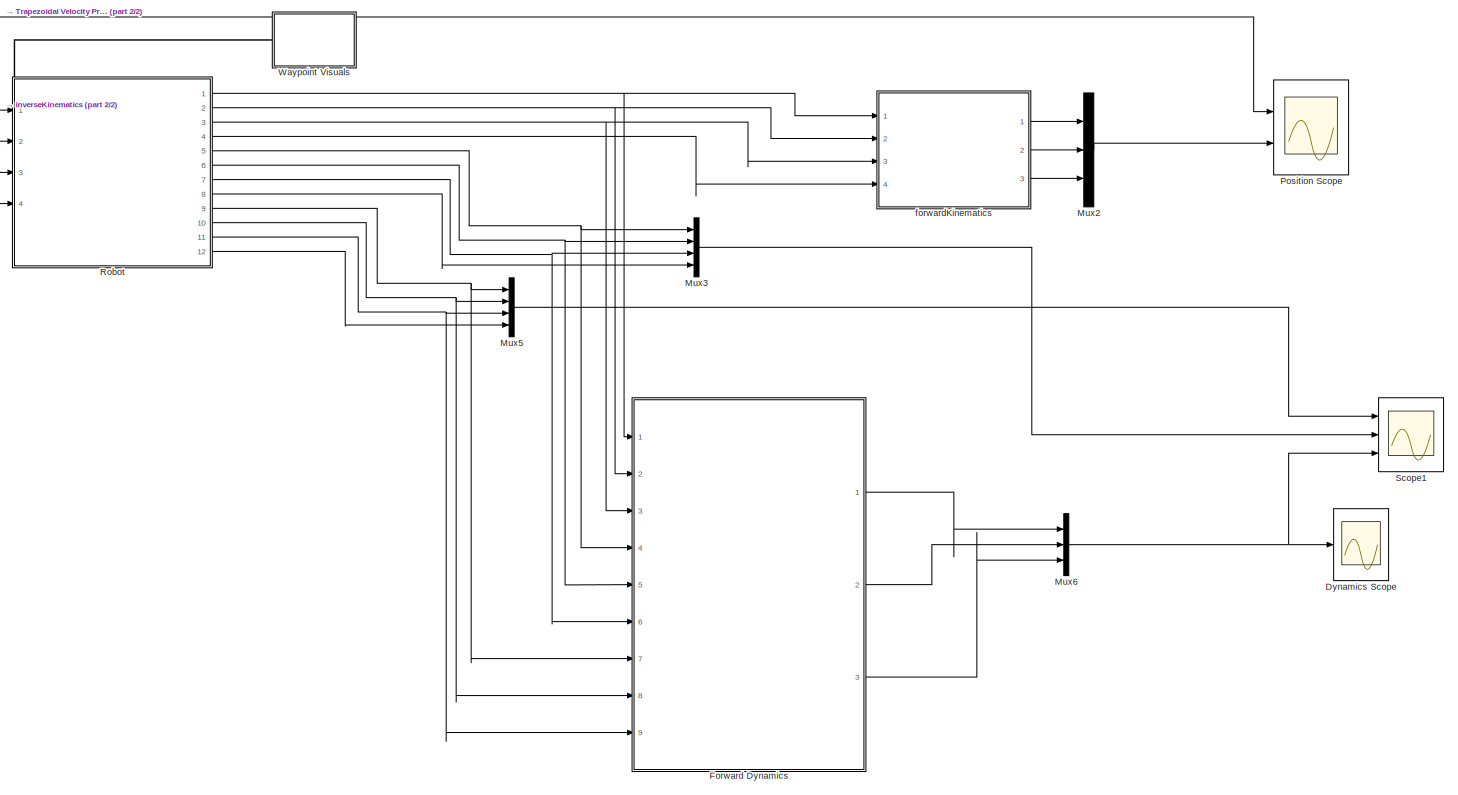
[diagram: root canvas - part 1/2, center side, full height]
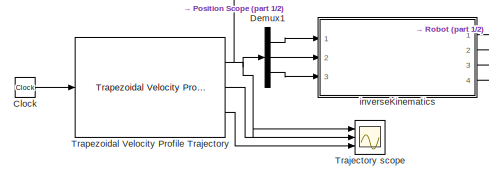
[diagram: root canvas - part 2/2, top left region]
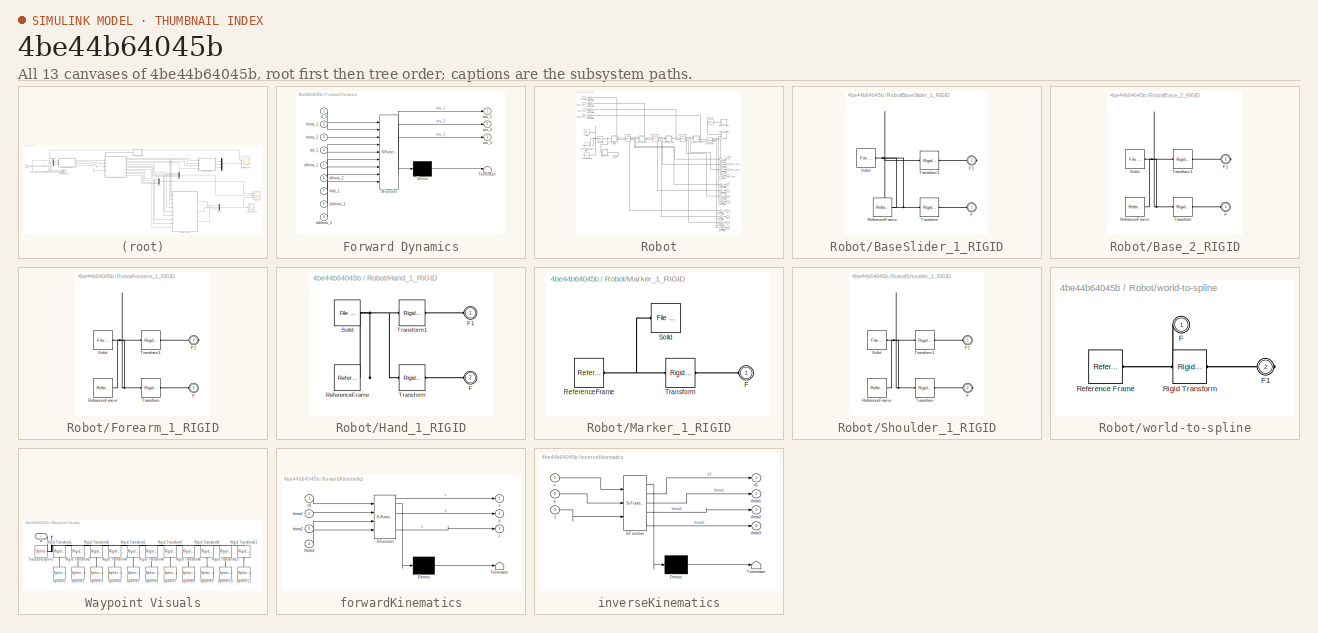
[diagram: thumbnail index - all 13 canvases of the model, root first then tree order]
MODEL slx_4be44b64045b
KIND model
CONFIG AbsTol = auto
CONFIG EnableMultiTasking = off
CONFIG FixedStep = auto
CONFIG MaxStep = auto
CONFIG MinStep = auto
CONFIG RelTol = 1e-3
CONFIG SampleTimeConstraint = Unconstrained
CONFIG SolverName = VariableStepAuto
CONFIG StartTime = 0.0
CONFIG StopTime = 30
WORKSPACE source: external: MATLAB File  (data not in archive)
BLOCK [Clock] Clock
BLOCK [Demux] Demux1
  Outputs = 3
  Ports = [1, 3]
BLOCK [Scope] Dynamics Scope
  Floating = off
  NumInputPorts = 1
  Ports = [1]
  ScopeSpecificationString = Simulink.scopes.TimeScopeBlockCfg('CurrentConfiguration', extmgr.ConfigurationSet(extmgr.Configuration('Core','General UI',true),extmgr.Configuration('Core','Source UI',true),extmgr.Configuration('Sources','WiredSimulink',true,'DataLoggingVariableName','ScopeData1'),extmgr.Configuration('Visuals','Time Domain',true,'SerializedDisplays',{struct('MinYLimReal','-61.11993','MaxYLimReal','96.55399','YL...<+1615ch>
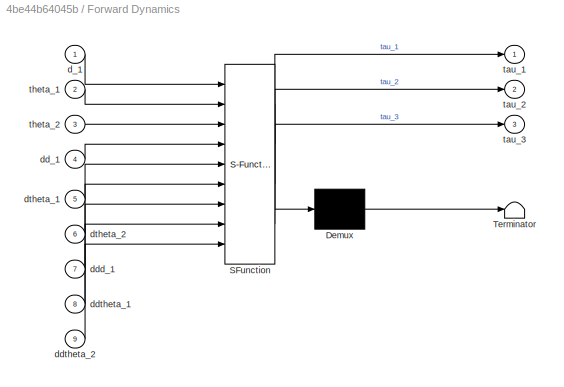
BLOCK [SubSystem] Forward Dynamics
  ErrorFcn = Stateflow.Translate.translate
  PermitHierarchicalResolution = ExplicitOnly
  Ports = [9, 3]
  RequestExecContextInheritance = off
  SFBlockType = MATLAB Function
  TreatAsAtomicUnit = on
BLOCK [Demux] Forward Dynamics/ Demux 
  Outputs = 1
  Ports = [1, 1]
BLOCK [S-Function] Forward Dynamics/ SFunction 
  EnableBusSupport = on
  FunctionName = sf_sfun
  PortCounts = [9 4]
  Ports = [9, 4]
  SFcnIsStateOwnerBlock = off
  SFunctionDeploymentMode = off
  Tag = Stateflow S-Function 1
BLOCK [Terminator] Forward Dynamics/ Terminator 
BLOCK [Inport] Forward Dynamics/d_1
BLOCK [Inport] Forward Dynamics/dd_1
  Port = 4
BLOCK [Inport] Forward Dynamics/ddd_1
  Port = 7
BLOCK [Inport] Forward Dynamics/ddtheta_1
  Port = 8
BLOCK [Inport] Forward Dynamics/ddtheta_2
  Port = 9
BLOCK [Inport] Forward Dynamics/dtheta_1
  Port = 5
BLOCK [Inport] Forward Dynamics/dtheta_2
  Port = 6
BLOCK [Outport] Forward Dynamics/tau_1
BLOCK [Outport] Forward Dynamics/tau_2
  Port = 2
BLOCK [Outport] Forward Dynamics/tau_3
  Port = 3
BLOCK [Inport] Forward Dynamics/theta_1
  Port = 2
BLOCK [Inport] Forward Dynamics/theta_2
  Port = 3
BLOCK [Mux] Mux2
  DisplayOption = bar
  Inputs = 3
  Ports = [3, 1]
BLOCK [Mux] Mux3
  DisplayOption = bar
  Ports = [4, 1]
BLOCK [Mux] Mux5
  DisplayOption = bar
  Ports = [4, 1]
BLOCK [Mux] Mux6
  DisplayOption = bar
  Inputs = 3
  Ports = [3, 1]
BLOCK [Scope] Position Scope
  Floating = off
  NumInputPorts = 2
  Ports = [2]
  ScopeSpecificationString = Simulink.scopes.TimeScopeBlockCfg('CurrentConfiguration', extmgr.ConfigurationSet(extmgr.Configuration('Core','General UI',true),extmgr.Configuration('Core','Source UI',true),extmgr.Configuration('Sources','WiredSimulink',true,'DataLoggingVariableName','ScopeData1'),extmgr.Configuration('Visuals','Time Domain',true,'SerializedDisplays',{struct('MinYLimReal','0.11536','MaxYLimReal','0.765','YLabelR...<+1797ch>
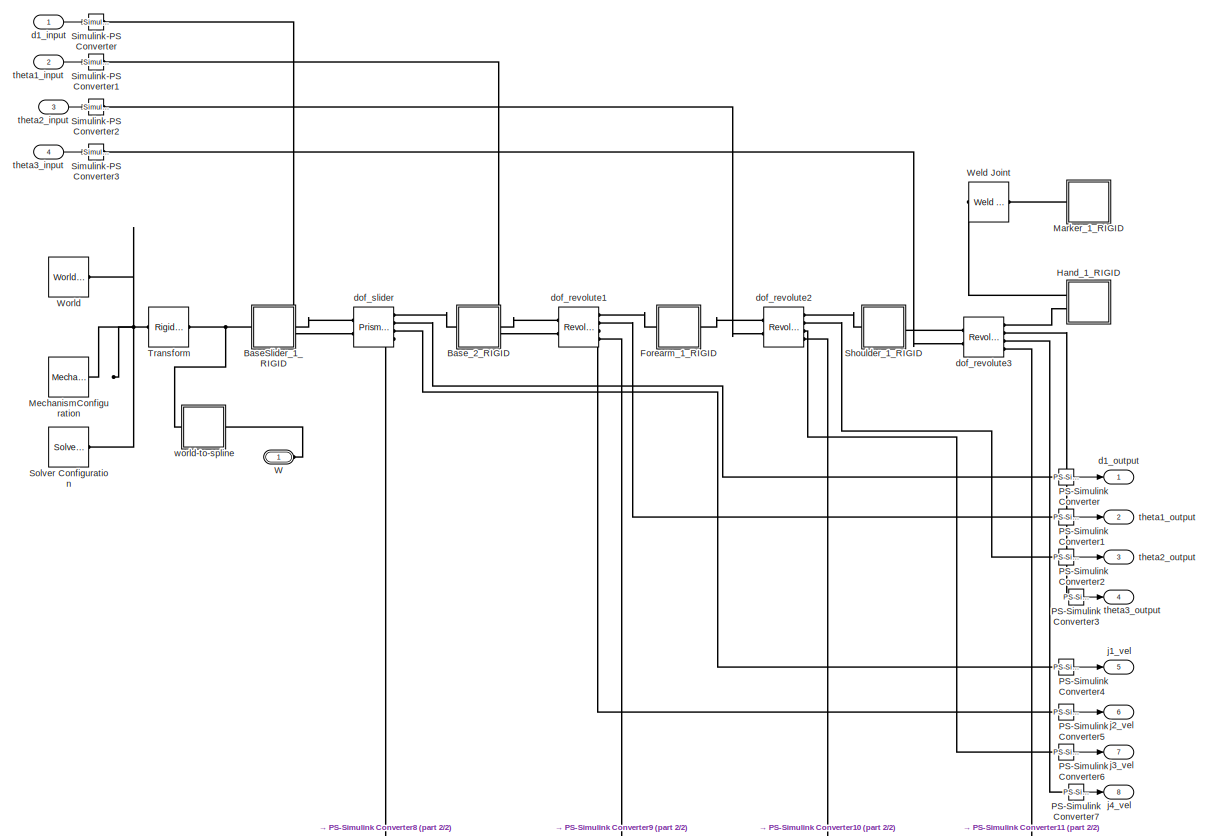
[diagram: Robot - part 1/2, most of the canvas]
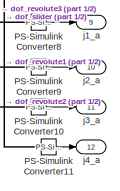
[diagram: Robot - part 2/2, bottom right region]
BLOCK [SubSystem] Robot
  PortSchema = {"entries":[{"content":{"sides":[{"content":{"connectorIds":["In1","In2","In3","In4"]},"type":"ConnectorPlacement.EquallySpacedRectSide","uuid":"c3a63643-6a7a-4711-84d8-adfc528b46a0"},{"content":{"connectorIds":["Out1","Out2","Out3","Out4","Out5","Out6","Out7","Out8","Out9","Out10","Out11","Out12"],"side":"RIGHT"},"type":"ConnectorPlacement.EquallySpacedRectSide","uuid":"b045bc45-fece-4f4f-b844-e3...<+346ch>
  Ports = [4, 12, 0, 0, 0, 1]
  RequestExecContextInheritance = off
BLOCK [SubSystem] Robot/BaseSlider_1_RIGID
  Ports = [0, 0, 0, 0, 0, 1, 1]
  RequestExecContextInheritance = off
BLOCK [PMIOPort] Robot/BaseSlider_1_RIGID/F
  Side = Left
BLOCK [PMIOPort] Robot/BaseSlider_1_RIGID/F1
  Port = 2
  Side = Right
BLOCK [Reference] Robot/BaseSlider_1_RIGID/ReferenceFrame  REF=sm_lib/Frames and
Transforms/Reference
Frame
  Ports = [0, 0, 0, 0, 0, 0, 1]
  SourceBlock = sm_lib/Frames and\nTransforms/Reference\nFrame
  SourceProductBaseCode = MS
  SourceType = Reference\nFrame
BLOCK [Reference] Robot/BaseSlider_1_RIGID/Solid  REF=sm_lib/Body Elements/File Solid
  Ports = [0, 0, 0, 0, 0, 0, 1]
  SourceBlock = sm_lib/Body Elements/File Solid
  SourceProductBaseCode = MS
  SourceType = File Solid
BLOCK [Reference] Robot/BaseSlider_1_RIGID/Transform  REF=sm_lib/Frames and
Transforms/Rigid
Transform
  Ports = [0, 0, 0, 0, 0, 1, 1]
  SourceBlock = sm_lib/Frames and\nTransforms/Rigid\nTransform
  SourceProductBaseCode = MS
  SourceType = Rigid\nTransform
BLOCK [Reference] Robot/BaseSlider_1_RIGID/Transform1  REF=sm_lib/Frames and
Transforms/Rigid
Transform
  Ports = [0, 0, 0, 0, 0, 1, 1]
  SourceBlock = sm_lib/Frames and\nTransforms/Rigid\nTransform
  SourceProductBaseCode = MS
  SourceType = Rigid\nTransform
BLOCK [SubSystem] Robot/Base_2_RIGID
  Ports = [0, 0, 0, 0, 0, 1, 1]
  RequestExecContextInheritance = off
BLOCK [PMIOPort] Robot/Base_2_RIGID/F
  Side = Left
BLOCK [PMIOPort] Robot/Base_2_RIGID/F1
  Port = 2
  Side = Right
BLOCK [Reference] Robot/Base_2_RIGID/ReferenceFrame  REF=sm_lib/Frames and
Transforms/Reference
Frame
  Ports = [0, 0, 0, 0, 0, 0, 1]
  SourceBlock = sm_lib/Frames and\nTransforms/Reference\nFrame
  SourceProductBaseCode = MS
  SourceType = Reference\nFrame
BLOCK [Reference] Robot/Base_2_RIGID/Solid  REF=sm_lib/Body Elements/File Solid
  Ports = [0, 0, 0, 0, 0, 0, 1]
  SourceBlock = sm_lib/Body Elements/File Solid
  SourceProductBaseCode = MS
  SourceType = File Solid
BLOCK [Reference] Robot/Base_2_RIGID/Transform  REF=sm_lib/Frames and
Transforms/Rigid
Transform
  Ports = [0, 0, 0, 0, 0, 1, 1]
  SourceBlock = sm_lib/Frames and\nTransforms/Rigid\nTransform
  SourceProductBaseCode = MS
  SourceType = Rigid\nTransform
BLOCK [Reference] Robot/Base_2_RIGID/Transform1  REF=sm_lib/Frames and
Transforms/Rigid
Transform
  Ports = [0, 0, 0, 0, 0, 1, 1]
  SourceBlock = sm_lib/Frames and\nTransforms/Rigid\nTransform
  SourceProductBaseCode = MS
  SourceType = Rigid\nTransform
BLOCK [SubSystem] Robot/Forearm_1_RIGID
  Ports = [0, 0, 0, 0, 0, 1, 1]
  RequestExecContextInheritance = off
BLOCK [PMIOPort] Robot/Forearm_1_RIGID/F
  Side = Left
BLOCK [PMIOPort] Robot/Forearm_1_RIGID/F1
  Port = 2
  Side = Right
BLOCK [Reference] Robot/Forearm_1_RIGID/ReferenceFrame  REF=sm_lib/Frames and
Transforms/Reference
Frame
  Ports = [0, 0, 0, 0, 0, 0, 1]
  SourceBlock = sm_lib/Frames and\nTransforms/Reference\nFrame
  SourceProductBaseCode = MS
  SourceType = Reference\nFrame
BLOCK [Reference] Robot/Forearm_1_RIGID/Solid  REF=sm_lib/Body Elements/File Solid
  Ports = [0, 0, 0, 0, 0, 0, 1]
  SourceBlock = sm_lib/Body Elements/File Solid
  SourceProductBaseCode = MS
  SourceType = File Solid
BLOCK [Reference] Robot/Forearm_1_RIGID/Transform  REF=sm_lib/Frames and
Transforms/Rigid
Transform
  Ports = [0, 0, 0, 0, 0, 1, 1]
  SourceBlock = sm_lib/Frames and\nTransforms/Rigid\nTransform
  SourceProductBaseCode = MS
  SourceType = Rigid\nTransform
BLOCK [Reference] Robot/Forearm_1_RIGID/Transform1  REF=sm_lib/Frames and
Transforms/Rigid
Transform
  Ports = [0, 0, 0, 0, 0, 1, 1]
  SourceBlock = sm_lib/Frames and\nTransforms/Rigid\nTransform
  SourceProductBaseCode = MS
  SourceType = Rigid\nTransform
BLOCK [SubSystem] Robot/Hand_1_RIGID
  Ports = [0, 0, 0, 0, 0, 2]
  RequestExecContextInheritance = off
BLOCK [PMIOPort] Robot/Hand_1_RIGID/F
  Port = 2
  Side = Left
BLOCK [PMIOPort] Robot/Hand_1_RIGID/F1
  Side = Left
BLOCK [Reference] Robot/Hand_1_RIGID/ReferenceFrame  REF=sm_lib/Frames and
Transforms/Reference
Frame
  Ports = [0, 0, 0, 0, 0, 0, 1]
  SourceBlock = sm_lib/Frames and\nTransforms/Reference\nFrame
  SourceProductBaseCode = MS
  SourceType = Reference\nFrame
BLOCK [Reference] Robot/Hand_1_RIGID/Solid  REF=sm_lib/Body Elements/File Solid
  Ports = [0, 0, 0, 0, 0, 0, 1]
  SourceBlock = sm_lib/Body Elements/File Solid
  SourceProductBaseCode = MS
  SourceType = File Solid
BLOCK [Reference] Robot/Hand_1_RIGID/Transform  REF=sm_lib/Frames and
Transforms/Rigid
Transform
  Ports = [0, 0, 0, 0, 0, 1, 1]
  SourceBlock = sm_lib/Frames and\nTransforms/Rigid\nTransform
  SourceProductBaseCode = MS
  SourceType = Rigid\nTransform
BLOCK [Reference] Robot/Hand_1_RIGID/Transform1  REF=sm_lib/Frames and
Transforms/Rigid
Transform
  Ports = [0, 0, 0, 0, 0, 1, 1]
  SourceBlock = sm_lib/Frames and\nTransforms/Rigid\nTransform
  SourceProductBaseCode = MS
  SourceType = Rigid\nTransform
BLOCK [SubSystem] Robot/Marker_1_RIGID
  Ports = [0, 0, 0, 0, 0, 1]
  RequestExecContextInheritance = off
BLOCK [PMIOPort] Robot/Marker_1_RIGID/F
  Side = Left
BLOCK [Reference] Robot/Marker_1_RIGID/ReferenceFrame  REF=sm_lib/Frames and
Transforms/Reference
Frame
  Ports = [0, 0, 0, 0, 0, 0, 1]
  SourceBlock = sm_lib/Frames and\nTransforms/Reference\nFrame
  SourceProductBaseCode = MS
  SourceType = Reference\nFrame
BLOCK [Reference] Robot/Marker_1_RIGID/Solid  REF=sm_lib/Body Elements/File Solid
  Ports = [0, 0, 0, 0, 0, 1]
  SourceBlock = sm_lib/Body Elements/File Solid
  SourceProductBaseCode = MS
  SourceType = File Solid
BLOCK [Reference] Robot/Marker_1_RIGID/Transform  REF=sm_lib/Frames and
Transforms/Rigid
Transform
  Ports = [0, 0, 0, 0, 0, 1, 1]
  SourceBlock = sm_lib/Frames and\nTransforms/Rigid\nTransform
  SourceProductBaseCode = MS
  SourceType = Rigid\nTransform
BLOCK [Reference] Robot/MechanismConfiguration  REF=sm_lib/Utilities/Mechanism
Configuration
  Ports = [0, 0, 0, 0, 0, 0, 1]
  SourceBlock = sm_lib/Utilities/Mechanism\nConfiguration
  SourceProductBaseCode = MS
  SourceType = Mechanism\nConfiguration
BLOCK [Reference] Robot/PS-Simulink Converter  REF=nesl_utility/PS-Simulink
Converter
  Ports = [0, 1, 0, 0, 0, 1]
  SourceBlock = nesl_utility/PS-Simulink\nConverter
  SourceProductBaseCode = PW,SS
  SourceType = PS-Simulink\nConverter
BLOCK [Reference] Robot/PS-Simulink Converter1  REF=nesl_utility/PS-Simulink
Converter
  Ports = [0, 1, 0, 0, 0, 1]
  SourceBlock = nesl_utility/PS-Simulink\nConverter
  SourceProductBaseCode = PW,SS
  SourceType = PS-Simulink\nConverter
BLOCK [Reference] Robot/PS-Simulink Converter10  REF=nesl_utility/PS-Simulink
Converter
  Ports = [0, 1, 0, 0, 0, 1]
  SourceBlock = nesl_utility/PS-Simulink\nConverter
  SourceProductBaseCode = PW,SS
  SourceType = PS-Simulink\nConverter
BLOCK [Reference] Robot/PS-Simulink Converter11  REF=nesl_utility/PS-Simulink
Converter
  Ports = [0, 1, 0, 0, 0, 1]
  SourceBlock = nesl_utility/PS-Simulink\nConverter
  SourceProductBaseCode = PW,SS
  SourceType = PS-Simulink\nConverter
BLOCK [Reference] Robot/PS-Simulink Converter2  REF=nesl_utility/PS-Simulink
Converter
  Ports = [0, 1, 0, 0, 0, 1]
  SourceBlock = nesl_utility/PS-Simulink\nConverter
  SourceProductBaseCode = PW,SS
  SourceType = PS-Simulink\nConverter
BLOCK [Reference] Robot/PS-Simulink Converter3  REF=nesl_utility/PS-Simulink
Converter
  Ports = [0, 1, 0, 0, 0, 1]
  SourceBlock = nesl_utility/PS-Simulink\nConverter
  SourceProductBaseCode = PW,SS
  SourceType = PS-Simulink\nConverter
BLOCK [Reference] Robot/PS-Simulink Converter4  REF=nesl_utility/PS-Simulink
Converter
  Ports = [0, 1, 0, 0, 0, 1]
  SourceBlock = nesl_utility/PS-Simulink\nConverter
  SourceProductBaseCode = PW,SS
  SourceType = PS-Simulink\nConverter
BLOCK [Reference] Robot/PS-Simulink Converter5  REF=nesl_utility/PS-Simulink
Converter
  Ports = [0, 1, 0, 0, 0, 1]
  SourceBlock = nesl_utility/PS-Simulink\nConverter
  SourceProductBaseCode = PW,SS
  SourceType = PS-Simulink\nConverter
BLOCK [Reference] Robot/PS-Simulink Converter6  REF=nesl_utility/PS-Simulink
Converter
  Ports = [0, 1, 0, 0, 0, 1]
  SourceBlock = nesl_utility/PS-Simulink\nConverter
  SourceProductBaseCode = PW,SS
  SourceType = PS-Simulink\nConverter
BLOCK [Reference] Robot/PS-Simulink Converter7  REF=nesl_utility/PS-Simulink
Converter
  Ports = [0, 1, 0, 0, 0, 1]
  SourceBlock = nesl_utility/PS-Simulink\nConverter
  SourceProductBaseCode = PW,SS
  SourceType = PS-Simulink\nConverter
BLOCK [Reference] Robot/PS-Simulink Converter8  REF=nesl_utility/PS-Simulink
Converter
  Ports = [0, 1, 0, 0, 0, 1]
  SourceBlock = nesl_utility/PS-Simulink\nConverter
  SourceProductBaseCode = PW,SS
  SourceType = PS-Simulink\nConverter
BLOCK [Reference] Robot/PS-Simulink Converter9  REF=nesl_utility/PS-Simulink
Converter
  Ports = [0, 1, 0, 0, 0, 1]
  SourceBlock = nesl_utility/PS-Simulink\nConverter
  SourceProductBaseCode = PW,SS
  SourceType = PS-Simulink\nConverter
BLOCK [SubSystem] Robot/Shoulder_1_RIGID
  Ports = [0, 0, 0, 0, 0, 1, 1]
  RequestExecContextInheritance = off
BLOCK [PMIOPort] Robot/Shoulder_1_RIGID/F
  Port = 2
  Side = Right
BLOCK [PMIOPort] Robot/Shoulder_1_RIGID/F1
  Side = Left
BLOCK [Reference] Robot/Shoulder_1_RIGID/ReferenceFrame  REF=sm_lib/Frames and
Transforms/Reference
Frame
  Ports = [0, 0, 0, 0, 0, 0, 1]
  SourceBlock = sm_lib/Frames and\nTransforms/Reference\nFrame
  SourceProductBaseCode = MS
  SourceType = Reference\nFrame
BLOCK [Reference] Robot/Shoulder_1_RIGID/Solid  REF=sm_lib/Body Elements/File Solid
  Ports = [0, 0, 0, 0, 0, 0, 1]
  SourceBlock = sm_lib/Body Elements/File Solid
  SourceProductBaseCode = MS
  SourceType = File Solid
BLOCK [Reference] Robot/Shoulder_1_RIGID/Transform  REF=sm_lib/Frames and
Transforms/Rigid
Transform
  Ports = [0, 0, 0, 0, 0, 1, 1]
  SourceBlock = sm_lib/Frames and\nTransforms/Rigid\nTransform
  SourceProductBaseCode = MS
  SourceType = Rigid\nTransform
BLOCK [Reference] Robot/Shoulder_1_RIGID/Transform1  REF=sm_lib/Frames and
Transforms/Rigid
Transform
  Ports = [0, 0, 0, 0, 0, 1, 1]
  SourceBlock = sm_lib/Frames and\nTransforms/Rigid\nTransform
  SourceProductBaseCode = MS
  SourceType = Rigid\nTransform
BLOCK [Reference] Robot/Simulink-PS Converter  REF=nesl_utility/Simulink-PS
Converter
  Ports = [1, 0, 0, 0, 0, 0, 1]
  SourceBlock = nesl_utility/Simulink-PS\nConverter
  SourceProductBaseCode = PW,SS
  SourceType = Simulink-PS\nConverter
BLOCK [Reference] Robot/Simulink-PS Converter1  REF=nesl_utility/Simulink-PS
Converter
  Ports = [1, 0, 0, 0, 0, 0, 1]
  SourceBlock = nesl_utility/Simulink-PS\nConverter
  SourceProductBaseCode = PW,SS
  SourceType = Simulink-PS\nConverter
BLOCK [Reference] Robot/Simulink-PS Converter2  REF=nesl_utility/Simulink-PS
Converter
  Ports = [1, 0, 0, 0, 0, 0, 1]
  SourceBlock = nesl_utility/Simulink-PS\nConverter
  SourceProductBaseCode = PW,SS
  SourceType = Simulink-PS\nConverter
BLOCK [Reference] Robot/Simulink-PS Converter3  REF=nesl_utility/Simulink-PS
Converter
  Ports = [1, 0, 0, 0, 0, 0, 1]
  SourceBlock = nesl_utility/Simulink-PS\nConverter
  SourceProductBaseCode = PW,SS
  SourceType = Simulink-PS\nConverter
BLOCK [Reference] Robot/Solver Configuration  REF=nesl_utility/Solver
Configuration
  Ports = [0, 0, 0, 0, 0, 0, 1]
  SourceBlock = nesl_utility/Solver\nConfiguration
  SourceProductBaseCode = PW,SS
  SourceType = Solver\nConfiguration
BLOCK [Reference] Robot/Transform  REF=sm_lib/Frames and
Transforms/Rigid
Transform
  Ports = [0, 0, 0, 0, 0, 1, 1]
  SourceBlock = sm_lib/Frames and\nTransforms/Rigid\nTransform
  SourceProductBaseCode = MS
  SourceType = Rigid\nTransform
BLOCK [PMIOPort] Robot/W
  Side = Left
BLOCK [Reference] Robot/Weld Joint  REF=sm_lib/Joints/Weld Joint
  Ports = [0, 0, 0, 0, 0, 1, 1]
  SourceBlock = sm_lib/Joints/Weld Joint
  SourceProductBaseCode = MS
  SourceType = Weld Joint
BLOCK [Reference] Robot/World  REF=sm_lib/Frames and
Transforms/World Frame
  Ports = [0, 0, 0, 0, 0, 0, 1]
  SourceBlock = sm_lib/Frames and\nTransforms/World Frame
  SourceProductBaseCode = MS
  SourceType = World Frame
BLOCK [Inport] Robot/d1_input
BLOCK [Outport] Robot/d1_output
BLOCK [Reference] Robot/dof_revolute1  REF=sm_lib/Joints/Revolute Joint
  Ports = [0, 0, 0, 0, 0, 2, 4]
  SourceBlock = sm_lib/Joints/Revolute Joint
  SourceProductBaseCode = MS
  SourceType = Revolute Joint
BLOCK [Reference] Robot/dof_revolute2  REF=sm_lib/Joints/Revolute Joint
  Ports = [0, 0, 0, 0, 0, 2, 4]
  SourceBlock = sm_lib/Joints/Revolute Joint
  SourceProductBaseCode = MS
  SourceType = Revolute Joint
BLOCK [Reference] Robot/dof_revolute3  REF=sm_lib/Joints/Revolute Joint
  Ports = [0, 0, 0, 0, 0, 2, 4]
  SourceBlock = sm_lib/Joints/Revolute Joint
  SourceProductBaseCode = MS
  SourceType = Revolute Joint
BLOCK [Reference] Robot/dof_slider  REF=sm_lib/Joints/Prismatic
Joint
  Ports = [0, 0, 0, 0, 0, 2, 4]
  SourceBlock = sm_lib/Joints/Prismatic\nJoint
  SourceProductBaseCode = MS
  SourceType = Prismatic\nJoint
BLOCK [Outport] Robot/j1_a
  Port = 9
BLOCK [Outport] Robot/j1_vel
  Port = 5
BLOCK [Outport] Robot/j2_a
  Port = 10
BLOCK [Outport] Robot/j2_vel
  Port = 6
BLOCK [Outport] Robot/j3_a
  Port = 11
BLOCK [Outport] Robot/j3_vel
  Port = 7
BLOCK [Outport] Robot/j4_a
  Port = 12
BLOCK [Outport] Robot/j4_vel
  Port = 8
BLOCK [Inport] Robot/theta1_input
  Port = 2
BLOCK [Outport] Robot/theta1_output
  Port = 2
BLOCK [Inport] Robot/theta2_input
  Port = 3
BLOCK [Outport] Robot/theta2_output
  Port = 3
BLOCK [Inport] Robot/theta3_input
  Port = 4
BLOCK [Outport] Robot/theta3_output
  Port = 4
BLOCK [SubSystem] Robot/world-to-spline
  Ports = [0, 0, 0, 0, 0, 1, 1]
  RequestExecContextInheritance = off
BLOCK [PMIOPort] Robot/world-to-spline/F
  Side = Left
BLOCK [PMIOPort] Robot/world-to-spline/F1
  Port = 2
  Side = Right
BLOCK [Reference] Robot/world-to-spline/Reference Frame  REF=sm_lib/Frames and
Transforms/Reference
Frame
  Ports = [0, 0, 0, 0, 0, 0, 1]
  SourceBlock = sm_lib/Frames and\nTransforms/Reference\nFrame
  SourceProductBaseCode = MS
  SourceType = Reference\nFrame
BLOCK [Reference] Robot/world-to-spline/Rigid Transform  REF=sm_lib/Frames and
Transforms/Rigid
Transform
  Ports = [0, 0, 0, 0, 0, 1, 1]
  SourceBlock = sm_lib/Frames and\nTransforms/Rigid\nTransform
  SourceProductBaseCode = MS
  SourceType = Rigid\nTransform
BLOCK [Scope] Scope1
  Floating = off
  NumInputPorts = 3
  Ports = [3]
  ScopeSpecificationString = Simulink.scopes.TimeScopeBlockCfg('CurrentConfiguration', extmgr.ConfigurationSet(extmgr.Configuration('Core','General UI',true),extmgr.Configuration('Core','Source UI',true),extmgr.Configuration('Sources','WiredSimulink',true,'DataLoggingVariableName','ScopeData1'),extmgr.Configuration('Visuals','Time Domain',true,'SerializedDisplays',{struct('MinYLimReal','-2.39084','MaxYLimReal','2.74284','YLab...<+3793ch>
BLOCK [Scope] Trajectory scope
  Floating = off
  NumInputPorts = 3
  Ports = [3]
  ScopeSpecificationString = Simulink.scopes.TimeScopeBlockCfg('CurrentConfiguration', extmgr.ConfigurationSet(extmgr.Configuration('Core','General UI',true),extmgr.Configuration('Core','Source UI',true),extmgr.Configuration('Sources','WiredSimulink',true,'DataLoggingVariableName','ScopeData1'),extmgr.Configuration('Visuals','Time Domain',true,'SerializedDisplays',{struct('MinYLimReal','0.105','MaxYLimReal','0.855','YLabelRea...<+2979ch>
BLOCK [Reference] Trapezoidal Velocity Profile Trajectory  REF=robotcorelib/Trapezoidal Velocity Profile Trajectory
  Ports = [1, 3]
  SourceBlock = robotcorelib/Trapezoidal Velocity Profile Trajectory
  SourceProductBaseCode = NV,RO,RR,UV
  SourceType = robotics.slcore.internal.block.TrapVelTrajSys
BLOCK [SubSystem] Waypoint Visuals
  CopyFcn = set_param(gcb,'LinkStatus','breakWithoutHierarchy');
  Ports = [0, 0, 0, 0, 0, 1]
  RequestExecContextInheritance = off
BLOCK [Reference] Waypoint Visuals/Rigid Transform1  REF=sm_lib/Frames and
Transforms/Rigid
Transform
  NameLocation = right
  Ports = [0, 0, 0, 0, 0, 1, 1]
  SourceBlock = sm_lib/Frames and\nTransforms/Rigid\nTransform
  SourceProductBaseCode = MS
  SourceType = Rigid\nTransform
BLOCK [Reference] Waypoint Visuals/Rigid Transform10  REF=sm_lib/Frames and
Transforms/Rigid
Transform
  NameLocation = right
  Ports = [0, 0, 0, 0, 0, 1, 1]
  SourceBlock = sm_lib/Frames and\nTransforms/Rigid\nTransform
  SourceProductBaseCode = MS
  SourceType = Rigid\nTransform
BLOCK [Reference] Waypoint Visuals/Rigid Transform11  REF=sm_lib/Frames and
Transforms/Rigid
Transform
  NameLocation = right
  Ports = [0, 0, 0, 0, 0, 1, 1]
  SourceBlock = sm_lib/Frames and\nTransforms/Rigid\nTransform
  SourceProductBaseCode = MS
  SourceType = Rigid\nTransform
BLOCK [Reference] Waypoint Visuals/Rigid Transform2  REF=sm_lib/Frames and
Transforms/Rigid
Transform
  NameLocation = right
  Ports = [0, 0, 0, 0, 0, 1, 1]
  SourceBlock = sm_lib/Frames and\nTransforms/Rigid\nTransform
  SourceProductBaseCode = MS
  SourceType = Rigid\nTransform
BLOCK [Reference] Waypoint Visuals/Rigid Transform3  REF=sm_lib/Frames and
Transforms/Rigid
Transform
  NameLocation = right
  Ports = [0, 0, 0, 0, 0, 1, 1]
  SourceBlock = sm_lib/Frames and\nTransforms/Rigid\nTransform
  SourceProductBaseCode = MS
  SourceType = Rigid\nTransform
BLOCK [Reference] Waypoint Visuals/Rigid Transform4  REF=sm_lib/Frames and
Transforms/Rigid
Transform
  NameLocation = right
  Ports = [0, 0, 0, 0, 0, 1, 1]
  SourceBlock = sm_lib/Frames and\nTransforms/Rigid\nTransform
  SourceProductBaseCode = MS
  SourceType = Rigid\nTransform
BLOCK [Reference] Waypoint Visuals/Rigid Transform5  REF=sm_lib/Frames and
Transforms/Rigid
Transform
  NameLocation = right
  Ports = [0, 0, 0, 0, 0, 1, 1]
  SourceBlock = sm_lib/Frames and\nTransforms/Rigid\nTransform
  SourceProductBaseCode = MS
  SourceType = Rigid\nTransform
BLOCK [Reference] Waypoint Visuals/Rigid Transform6  REF=sm_lib/Frames and
Transforms/Rigid
Transform
  NameLocation = right
  Ports = [0, 0, 0, 0, 0, 1, 1]
  SourceBlock = sm_lib/Frames and\nTransforms/Rigid\nTransform
  SourceProductBaseCode = MS
  SourceType = Rigid\nTransform
BLOCK [Reference] Waypoint Visuals/Rigid Transform7  REF=sm_lib/Frames and
Transforms/Rigid
Transform
  NameLocation = right
  Ports = [0, 0, 0, 0, 0, 1, 1]
  SourceBlock = sm_lib/Frames and\nTransforms/Rigid\nTransform
  SourceProductBaseCode = MS
  SourceType = Rigid\nTransform
BLOCK [Reference] Waypoint Visuals/Rigid Transform8  REF=sm_lib/Frames and
Transforms/Rigid
Transform
  NameLocation = right
  Ports = [0, 0, 0, 0, 0, 1, 1]
  SourceBlock = sm_lib/Frames and\nTransforms/Rigid\nTransform
  SourceProductBaseCode = MS
  SourceType = Rigid\nTransform
BLOCK [Reference] Waypoint Visuals/Rigid Transform9  REF=sm_lib/Frames and
Transforms/Rigid
Transform
  NameLocation = right
  Ports = [0, 0, 0, 0, 0, 1, 1]
  SourceBlock = sm_lib/Frames and\nTransforms/Rigid\nTransform
  SourceProductBaseCode = MS
  SourceType = Rigid\nTransform
BLOCK [Reference] Waypoint Visuals/Sphere1  REF=sm_lib/Body Elements/Spherical Solid
  Ports = [0, 0, 0, 0, 0, 0, 1]
  SourceBlock = sm_lib/Body Elements/Spherical Solid
  SourceProductBaseCode = MS
  SourceType = Spherical Solid
BLOCK [Reference] Waypoint Visuals/Sphere10  REF=sm_lib/Body Elements/Spherical Solid
  Ports = [0, 0, 0, 0, 0, 0, 1]
  SourceBlock = sm_lib/Body Elements/Spherical Solid
  SourceProductBaseCode = MS
  SourceType = Spherical Solid
BLOCK [Reference] Waypoint Visuals/Sphere11  REF=sm_lib/Body Elements/Spherical Solid
  Ports = [0, 0, 0, 0, 0, 0, 1]
  SourceBlock = sm_lib/Body Elements/Spherical Solid
  SourceProductBaseCode = MS
  SourceType = Spherical Solid
BLOCK [Reference] Waypoint Visuals/Sphere2  REF=sm_lib/Body Elements/Spherical Solid
  Ports = [0, 0, 0, 0, 0, 0, 1]
  SourceBlock = sm_lib/Body Elements/Spherical Solid
  SourceProductBaseCode = MS
  SourceType = Spherical Solid
BLOCK [Reference] Waypoint Visuals/Sphere3  REF=sm_lib/Body Elements/Spherical Solid
  Ports = [0, 0, 0, 0, 0, 0, 1]
  SourceBlock = sm_lib/Body Elements/Spherical Solid
  SourceProductBaseCode = MS
  SourceType = Spherical Solid
BLOCK [Reference] Waypoint Visuals/Sphere4  REF=sm_lib/Body Elements/Spherical Solid
  Ports = [0, 0, 0, 0, 0, 0, 1]
  SourceBlock = sm_lib/Body Elements/Spherical Solid
  SourceProductBaseCode = MS
  SourceType = Spherical Solid
BLOCK [Reference] Waypoint Visuals/Sphere5  REF=sm_lib/Body Elements/Spherical Solid
  Ports = [0, 0, 0, 0, 0, 0, 1]
  SourceBlock = sm_lib/Body Elements/Spherical Solid
  SourceProductBaseCode = MS
  SourceType = Spherical Solid
BLOCK [Reference] Waypoint Visuals/Sphere6  REF=sm_lib/Body Elements/Spherical Solid
  Ports = [0, 0, 0, 0, 0, 0, 1]
  SourceBlock = sm_lib/Body Elements/Spherical Solid
  SourceProductBaseCode = MS
  SourceType = Spherical Solid
BLOCK [Reference] Waypoint Visuals/Sphere7  REF=sm_lib/Body Elements/Spherical Solid
  Ports = [0, 0, 0, 0, 0, 0, 1]
  SourceBlock = sm_lib/Body Elements/Spherical Solid
  SourceProductBaseCode = MS
  SourceType = Spherical Solid
BLOCK [Reference] Waypoint Visuals/Sphere8  REF=sm_lib/Body Elements/Spherical Solid
  Ports = [0, 0, 0, 0, 0, 0, 1]
  SourceBlock = sm_lib/Body Elements/Spherical Solid
  SourceProductBaseCode = MS
  SourceType = Spherical Solid
BLOCK [Reference] Waypoint Visuals/Sphere9  REF=sm_lib/Body Elements/Spherical Solid
  Ports = [0, 0, 0, 0, 0, 0, 1]
  SourceBlock = sm_lib/Body Elements/Spherical Solid
  SourceProductBaseCode = MS
  SourceType = Spherical Solid
BLOCK [Reference] Waypoint Visuals/Trajectory Spline  REF=sm_lib/Curves and Surfaces/Spline
  Ports = [0, 0, 0, 0, 0, 1, 1]
  SourceBlock = sm_lib/Curves and Surfaces/Spline
  SourceProductBaseCode = MS
  SourceType = Spline
BLOCK [PMIOPort] Waypoint Visuals/W
  Side = Left
BLOCK [SubSystem] forwardKinematics
  ErrorFcn = Stateflow.Translate.translate
  PermitHierarchicalResolution = ExplicitOnly
  Ports = [4, 3]
  RequestExecContextInheritance = off
  SFBlockType = MATLAB Function
  TreatAsAtomicUnit = on
BLOCK [Demux] forwardKinematics/ Demux 
  Outputs = 1
  Ports = [1, 1]
BLOCK [S-Function] forwardKinematics/ SFunction 
  EnableBusSupport = on
  FunctionName = sf_sfun
  PortCounts = [4 4]
  Ports = [4, 4]
  SFcnIsStateOwnerBlock = off
  SFunctionDeploymentMode = off
  Tag = Stateflow S-Function 2
BLOCK [Terminator] forwardKinematics/ Terminator 
BLOCK [Inport] forwardKinematics/d1
BLOCK [Inport] forwardKinematics/theta1
  Port = 2
BLOCK [Inport] forwardKinematics/theta2
  Port = 3
BLOCK [Inport] forwardKinematics/theta3
  Port = 4
BLOCK [Outport] forwardKinematics/x
BLOCK [Outport] forwardKinematics/y
  Port = 2
BLOCK [Outport] forwardKinematics/z
  Port = 3
BLOCK [SubSystem] inverseKinematics
  ErrorFcn = Stateflow.Translate.translate
  PermitHierarchicalResolution = ExplicitOnly
  Ports = [3, 4]
  RequestExecContextInheritance = off
  SFBlockType = MATLAB Function
  TreatAsAtomicUnit = on
BLOCK [Demux] inverseKinematics/ Demux 
  Outputs = 1
  Ports = [1, 1]
BLOCK [S-Function] inverseKinematics/ SFunction 
  EnableBusSupport = on
  FunctionName = sf_sfun
  PortCounts = [3 5]
  Ports = [3, 5]
  SFcnIsStateOwnerBlock = off
  SFunctionDeploymentMode = off
  Tag = Stateflow S-Function 3
BLOCK [Terminator] inverseKinematics/ Terminator 
BLOCK [Outport] inverseKinematics/d1
BLOCK [Outport] inverseKinematics/theta1
  Port = 2
BLOCK [Outport] inverseKinematics/theta2
  Port = 3
BLOCK [Outport] inverseKinematics/theta3
  Port = 4
BLOCK [Inport] inverseKinematics/x
BLOCK [Inport] inverseKinematics/y
  Port = 2
BLOCK [Inport] inverseKinematics/z
  Port = 3
LINE Clock:1 -> Trapezoidal Velocity Profile Trajectory:1
LINE Demux1:1 -> inverseKinematics:1
LINE Demux1:2 -> inverseKinematics:2
LINE Demux1:3 -> inverseKinematics:3
LINE Forward Dynamics:1 -> Mux6:1
LINE Forward Dynamics:2 -> Mux6:2
LINE Forward Dynamics:3 -> Mux6:3
LINE Mux2:1 -> Position Scope:2
LINE Mux3:1 -> Scope1:2
LINE Mux5:1 -> Scope1:1
NET Mux6:1 -> Dynamics Scope:1, Scope1:3
LINE Robot/PS-Simulink Converter10:1 -> Robot/j3_a:1
LINE Robot/PS-Simulink Converter11:1 -> Robot/j4_a:1
LINE Robot/PS-Simulink Converter1:1 -> Robot/theta1_output:1
LINE Robot/PS-Simulink Converter2:1 -> Robot/theta2_output:1
LINE Robot/PS-Simulink Converter3:1 -> Robot/theta3_output:1
LINE Robot/PS-Simulink Converter4:1 -> Robot/j1_vel:1
LINE Robot/PS-Simulink Converter5:1 -> Robot/j2_vel:1
LINE Robot/PS-Simulink Converter6:1 -> Robot/j3_vel:1
LINE Robot/PS-Simulink Converter7:1 -> Robot/j4_vel:1
LINE Robot/PS-Simulink Converter8:1 -> Robot/j1_a:1
LINE Robot/PS-Simulink Converter9:1 -> Robot/j2_a:1
LINE Robot/PS-Simulink Converter:1 -> Robot/d1_output:1
LINE Robot/d1_input:1 -> Robot/Simulink-PS Converter:1
LINE Robot/theta1_input:1 -> Robot/Simulink-PS Converter1:1
LINE Robot/theta2_input:1 -> Robot/Simulink-PS Converter2:1
LINE Robot/theta3_input:1 -> Robot/Simulink-PS Converter3:1
NET Robot:1 -> Forward Dynamics:1, forwardKinematics:1
NET Robot:10 -> Forward Dynamics:8, Mux5:2
NET Robot:11 -> Forward Dynamics:9, Mux5:3
LINE Robot:12 -> Mux5:4
NET Robot:2 -> Forward Dynamics:2, forwardKinematics:2
NET Robot:3 -> Forward Dynamics:3, forwardKinematics:3
LINE Robot:4 -> forwardKinematics:4
NET Robot:5 -> Forward Dynamics:4, Mux3:1
NET Robot:6 -> Forward Dynamics:5, Mux3:2
NET Robot:7 -> Forward Dynamics:6, Mux3:3
LINE Robot:8 -> Mux3:4
NET Robot:9 -> Forward Dynamics:7, Mux5:1
NET Trapezoidal Velocity Profile Trajectory:1 -> Demux1:1, Position Scope:1, Trajectory scope:1
LINE Trapezoidal Velocity Profile Trajectory:2 -> Trajectory scope:2
LINE Trapezoidal Velocity Profile Trajectory:3 -> Trajectory scope:3
LINE forwardKinematics:1 -> Mux2:1
LINE forwardKinematics:2 -> Mux2:2
LINE forwardKinematics:3 -> Mux2:3
LINE inverseKinematics:1 -> Robot:1
LINE inverseKinematics:2 -> Robot:2
LINE inverseKinematics:3 -> Robot:3
LINE inverseKinematics:4 -> Robot:4
PLINE Robot/BaseSlider_1_RIGID/F1:RConn1 -- Robot/BaseSlider_1_RIGID/Transform1:RConn1
PLINE Robot/BaseSlider_1_RIGID/F:RConn1 -- Robot/BaseSlider_1_RIGID/Transform:RConn1
PNET net1: Robot/BaseSlider_1_RIGID/ReferenceFrame:RConn1 -- Robot/BaseSlider_1_RIGID/Solid:RConn1 -- Robot/BaseSlider_1_RIGID/Transform1:LConn1 -- Robot/BaseSlider_1_RIGID/Transform:LConn1
PNET net2: Robot/BaseSlider_1_RIGID:LConn1 -- Robot/Transform:RConn1 -- Robot/world-to-spline:LConn1
PLINE Robot/BaseSlider_1_RIGID:RConn1 -- Robot/dof_slider:LConn1
PLINE Robot/Base_2_RIGID/F1:RConn1 -- Robot/Base_2_RIGID/Transform1:RConn1
PLINE Robot/Base_2_RIGID/F:RConn1 -- Robot/Base_2_RIGID/Transform:RConn1
PNET net3: Robot/Base_2_RIGID/ReferenceFrame:RConn1 -- Robot/Base_2_RIGID/Solid:RConn1 -- Robot/Base_2_RIGID/Transform1:LConn1 -- Robot/Base_2_RIGID/Transform:LConn1
PLINE Robot/Base_2_RIGID:LConn1 -- Robot/dof_slider:RConn1
PLINE Robot/Base_2_RIGID:RConn1 -- Robot/dof_revolute1:LConn1
PLINE Robot/Forearm_1_RIGID/F1:RConn1 -- Robot/Forearm_1_RIGID/Transform1:RConn1
PLINE Robot/Forearm_1_RIGID/F:RConn1 -- Robot/Forearm_1_RIGID/Transform:RConn1
PNET net4: Robot/Forearm_1_RIGID/ReferenceFrame:RConn1 -- Robot/Forearm_1_RIGID/Solid:RConn1 -- Robot/Forearm_1_RIGID/Transform1:LConn1 -- Robot/Forearm_1_RIGID/Transform:LConn1
PLINE Robot/Forearm_1_RIGID:LConn1 -- Robot/dof_revolute1:RConn1
PLINE Robot/Forearm_1_RIGID:RConn1 -- Robot/dof_revolute2:LConn1
PLINE Robot/Hand_1_RIGID/F1:RConn1 -- Robot/Hand_1_RIGID/Transform1:RConn1
PLINE Robot/Hand_1_RIGID/F:RConn1 -- Robot/Hand_1_RIGID/Transform:RConn1
PNET net5: Robot/Hand_1_RIGID/ReferenceFrame:RConn1 -- Robot/Hand_1_RIGID/Solid:RConn1 -- Robot/Hand_1_RIGID/Transform1:LConn1 -- Robot/Hand_1_RIGID/Transform:LConn1
PLINE Robot/Hand_1_RIGID:LConn1 -- Robot/Weld Joint:LConn1
PLINE Robot/Hand_1_RIGID:LConn2 -- Robot/dof_revolute3:RConn1
PLINE Robot/Marker_1_RIGID/F:RConn1 -- Robot/Marker_1_RIGID/Transform:RConn1
PNET net6: Robot/Marker_1_RIGID/ReferenceFrame:RConn1 -- Robot/Marker_1_RIGID/Solid:LConn1 -- Robot/Marker_1_RIGID/Transform:LConn1
PLINE Robot/Marker_1_RIGID:LConn1 -- Robot/Weld Joint:RConn1
PNET net7: Robot/MechanismConfiguration:RConn1 -- Robot/Solver Configuration:RConn1 -- Robot/Transform:LConn1 -- Robot/World:RConn1
PLINE Robot/PS-Simulink Converter10:LConn1 -- Robot/dof_revolute2:RConn4
PLINE Robot/PS-Simulink Converter11:LConn1 -- Robot/dof_revolute3:RConn4
PLINE Robot/PS-Simulink Converter1:LConn1 -- Robot/dof_revolute1:RConn2
PLINE Robot/PS-Simulink Converter2:LConn1 -- Robot/dof_revolute2:RConn2
PLINE Robot/PS-Simulink Converter3:LConn1 -- Robot/dof_revolute3:RConn2
PLINE Robot/PS-Simulink Converter4:LConn1 -- Robot/dof_slider:RConn3
PLINE Robot/PS-Simulink Converter5:LConn1 -- Robot/dof_revolute1:RConn3
PLINE Robot/PS-Simulink Converter6:LConn1 -- Robot/dof_revolute2:RConn3
PLINE Robot/PS-Simulink Converter7:LConn1 -- Robot/dof_revolute3:RConn3
PLINE Robot/PS-Simulink Converter8:LConn1 -- Robot/dof_slider:RConn4
PLINE Robot/PS-Simulink Converter9:LConn1 -- Robot/dof_revolute1:RConn4
PLINE Robot/PS-Simulink Converter:LConn1 -- Robot/dof_slider:RConn2
PLINE Robot/Shoulder_1_RIGID/F1:RConn1 -- Robot/Shoulder_1_RIGID/Transform1:RConn1
PLINE Robot/Shoulder_1_RIGID/F:RConn1 -- Robot/Shoulder_1_RIGID/Transform:RConn1
PNET net8: Robot/Shoulder_1_RIGID/ReferenceFrame:RConn1 -- Robot/Shoulder_1_RIGID/Solid:RConn1 -- Robot/Shoulder_1_RIGID/Transform1:LConn1 -- Robot/Shoulder_1_RIGID/Transform:LConn1
PLINE Robot/Shoulder_1_RIGID:LConn1 -- Robot/dof_revolute2:RConn1
PLINE Robot/Shoulder_1_RIGID:RConn1 -- Robot/dof_revolute3:LConn1
PLINE Robot/Simulink-PS Converter1:RConn1 -- Robot/dof_revolute1:LConn2
PLINE Robot/Simulink-PS Converter2:RConn1 -- Robot/dof_revolute2:LConn2
PLINE Robot/Simulink-PS Converter3:RConn1 -- Robot/dof_revolute3:LConn2
PLINE Robot/Simulink-PS Converter:RConn1 -- Robot/dof_slider:LConn2
PLINE Robot/W:RConn1 -- Robot/world-to-spline:RConn1
PLINE Robot/world-to-spline/F1:RConn1 -- Robot/world-to-spline/Rigid Transform:RConn1
PNET net9: Robot/world-to-spline/F:RConn1 -- Robot/world-to-spline/Reference Frame:RConn1 -- Robot/world-to-spline/Rigid Transform:LConn1
PLINE Robot:LConn1 -- Waypoint Visuals:LConn1
note: NET lines group one-source signal fan-out (src -> all destinations, sorted); 1:1 wires keep LINE; PNET lines group multi-terminal physical nets as a canonical sorted terminal list (undirected conserving connections); 2-terminal nets keep the pairwise PLINE form
CHART Forward Dynamics states=1 transitions=1
  STATE_LABEL 'eML_blk_kernel()'
  STATE_LABEL 'SCRIPT:\nfunction [tau_1, tau_2, tau_3] = Dynamics(d_1,theta_1,theta_2,dd_1,dtheta_1,dtheta_2,ddd_1, ddtheta_1,ddtheta_2)\n\nm_1=7.49980007;\nm_2=8.651076019;\nm_3=8.651076019; \n\nl_1=0.1;\nl=0.48; % l=l_2=l_3=0.48\n\ng=9.80665;\n\n% Declare trigonometric functions\ntheta_1_90=theta_1+pi/2;\n\nc_1=cos(theta_1_90);\nc_2=cos(theta_2);\nc_12=cos(theta_1_90+theta_2);\n\ns_1=sin(theta_1_90);\ns_2=sin(theta_2);\ns_12=sin(t...<+1297ch>'
CHART forwardKinematics states=1 transitions=1
  STATE_LABEL 'eML_blk_kernel()'
  STATE_LABEL 'SCRIPT:\nfunction [x, y, z] = forward_kinematics(d1, theta1, theta2, theta3)\nx = - 0.48*cos(theta1 + theta2 + 1.5707963267948966192313216916398) - 0.206*cos(theta1 + theta2 + theta3 + 1.5707963267948966192313216916398) - 0.48*cos(theta1 + 1.5707963267948966192313216916398);\ny = d1 + 0.2915;\nz = 0.48*sin(theta1 + theta2 + 1.5707963267948966192313216916398) + 0.206*sin(theta1 + theta2 + theta3 + 1.57...<+104ch>'
CHART inverseKinematics states=1 transitions=1
  STATE_LABEL 'eML_blk_kernel()'
  STATE_LABEL 'SCRIPT:\nfunction [d1,theta1,theta2,theta3] = inverse_kinematics(x,y,z)\nd1=y-0.2915;\ntheta_total = pi/2;\nx_1 = (x)-0.206*sin(theta_total);\nz_1 = (z-0.1775)-0.206*cos(theta_total);\ntheta2 = acos(((x_1^2+z_1^2)-(2*0.48^2))/(2*0.48^2));\ntheta1 = atan(x_1/z_1) - atan((0.48*sin(theta2))/(0.48+(0.48*cos(theta2))));\ntheta3 = theta_total - (theta1 + theta2);\nend\n\n'
CHART  states=0 transitions=0
CHART  states=0 transitions=0
CHART  states=0 transitions=0
